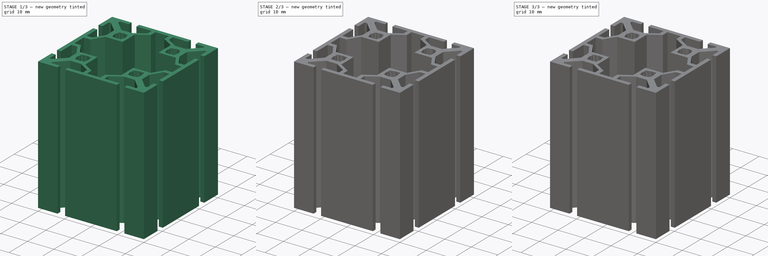
[diagram: build sequence overview — one tinted view per stage of 3, left to right]
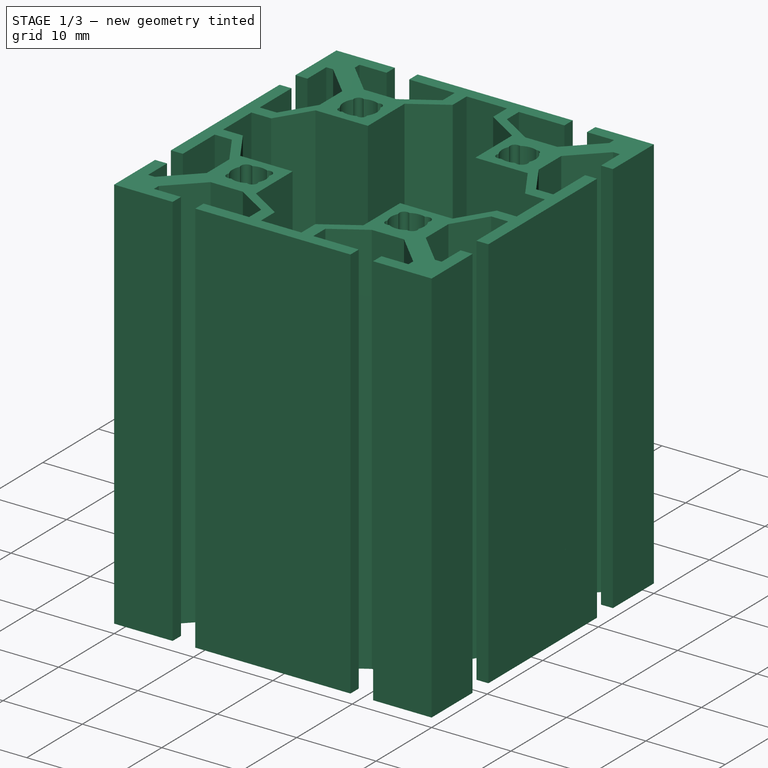
[diagram: stage 1 of 3 — iso view after this stage's code; geometry added in this stage tinted green]
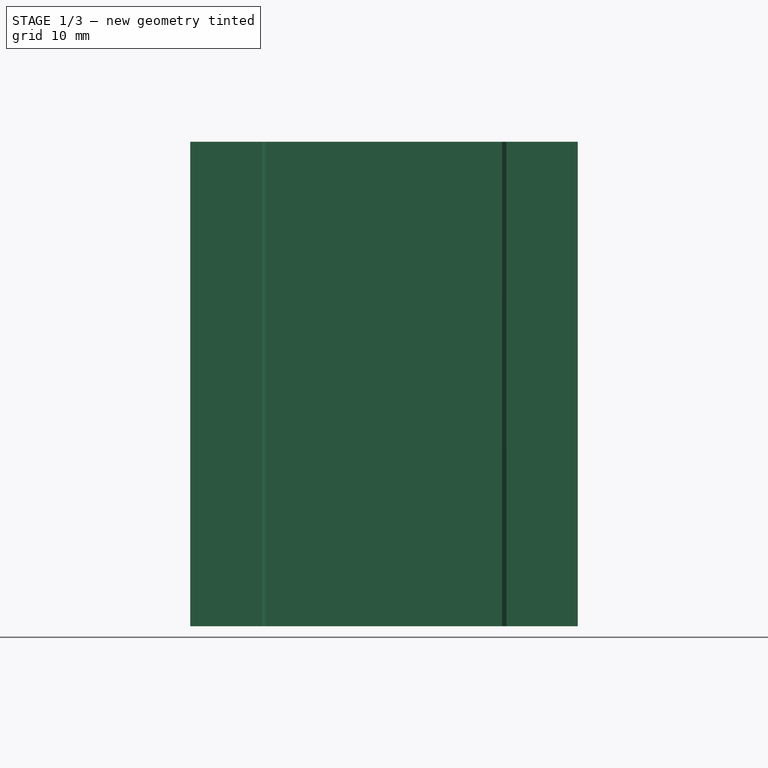
[diagram: stage 1 of 3 — front view after this stage's code; geometry added in this stage tinted green]
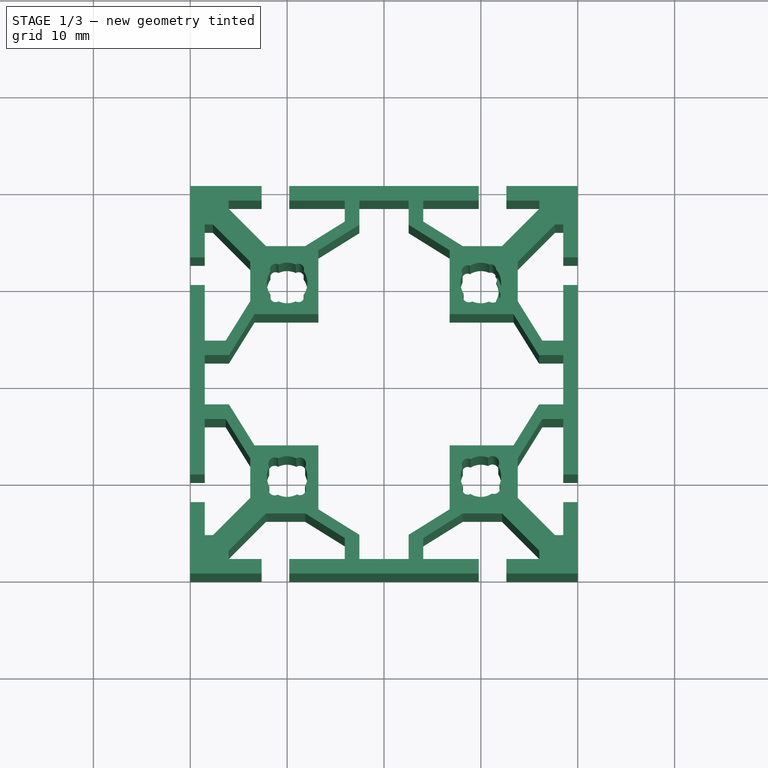
[diagram: stage 1 of 3 — top view after this stage's code; geometry added in this stage tinted green]
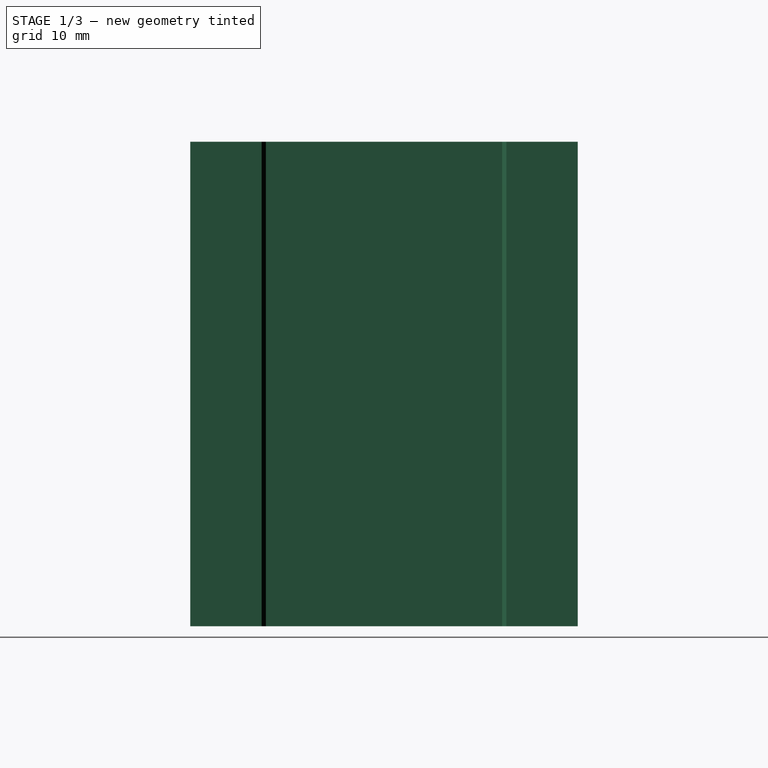
[diagram: stage 1 of 3 — right view after this stage's code; geometry added in this stage tinted green]
FCSTD DOCUMENT  (FreeCAD 0.19R24267 +99 (Git))
Label: Profile 20-4040
License: All rights reserved
LicenseURL: http://en.wikipedia.org/wiki/All_rights_reserved
objects: PartDesign::Body×3, Sketcher::SketchObject×2, PartDesign::Pad×2, PartDesign::Mirrored×2, PartDesign::PolarPattern×1, PartDesign::FeatureBase×1, PartDesign::Boolean×1, App::Part×1
note: 14 computed .brp shape members not serialized (recipe doc carries the construction recipe); baked Part::Feature solids carry a one-line shape summary decoded from their .brp

FEATURE [Sketcher::SketchObject] Sketch
  FullyConstrained = false
  MapMode = 5
  Support = -> [XY_Plane001]
  sketch-geometry (38):
    g0: LineSegment StartX=-22.5 StartY=-22.5 StartZ=0 EndX=22.5 EndY=-22.5 EndZ=0
    g1: LineSegment StartX=22.5 StartY=-22.5 StartZ=0 EndX=22.5 EndY=22.5 EndZ=0
    g2: LineSegment StartX=22.5 StartY=22.5 StartZ=0 EndX=-22.5 EndY=22.5 EndZ=0
    g3: LineSegment StartX=-22.5 StartY=22.5 StartZ=0 EndX=-22.5 EndY=-22.5 EndZ=0
    g4: LineSegment StartX=-22.5 StartY=22.5 StartZ=0 EndX=0 EndY=0 EndZ=0
    g5: LineSegment StartX=0 StartY=0 StartZ=0 EndX=22.5 EndY=-22.5 EndZ=0
    g6: LineSegment StartX=13.369 StartY=6.77383 StartZ=0 EndX=15.9987 EndY=2.5456 EndZ=0
    g7: LineSegment StartX=15.9987 StartY=2.5456 StartZ=0 EndX=18.5 EndY=2.5456 EndZ=0
    g8: LineSegment StartX=18.5 StartY=2.5456 StartZ=0 EndX=18.5 EndY=0 EndZ=0
    g9: LineSegment StartX=18.5 StartY=0 StartZ=0 EndX=20 EndY=0 EndZ=0
    g10: LineSegment StartX=20 StartY=0 StartZ=0 EndX=20 EndY=9.77979 EndZ=0
    g11: LineSegment StartX=20 StartY=9.77979 StartZ=0 EndX=18.5 EndY=9.77979 EndZ=0
    g12: LineSegment StartX=18.5 StartY=9.77979 StartZ=0 EndX=18.5 EndY=4.0456 EndZ=0
    g13: LineSegment StartX=18.5 StartY=4.0456 StartZ=0 EndX=16.3382 EndY=4.0456 EndZ=0
    g14: LineSegment StartX=16.3382 StartY=4.0456 StartZ=0 EndX=13.8 EndY=8.12685 EndZ=0
    g15: LineSegment StartX=13.8 StartY=8.12685 StartZ=0 EndX=13.8 EndY=12.191 EndZ=0
    g16: LineSegment StartX=13.8 StartY=12.191 StartZ=0 EndX=17.6446 EndY=16.0356 EndZ=0
    g17: LineSegment StartX=17.6446 StartY=16.0356 StartZ=0 EndX=18.5 EndY=16.0356 EndZ=0
    g18: LineSegment StartX=18.5 StartY=16.0356 StartZ=0 EndX=18.5 EndY=12.63 EndZ=0
    g19: LineSegment StartX=18.5 StartY=12.63 StartZ=0 EndX=20 EndY=12.63 EndZ=0
    g20: LineSegment StartX=20 StartY=12.63 StartZ=0 EndX=20 EndY=20 EndZ=0
    g21: LineSegment StartX=13.369 StartY=6.77383 StartZ=0 EndX=6.77383 EndY=6.77383 EndZ=0
    g22: LineSegment StartX=6.77383 StartY=6.77383 StartZ=0 EndX=8.14622 EndY=8.14622 EndZ=0
    g23: LineSegment StartX=8.57049 StartY=11.0705 StartZ=0 EndX=11.0705 EndY=11.0705 EndZ=0
    g24: LineSegment StartX=11.0705 StartY=11.0705 StartZ=0 EndX=11.0705 EndY=8.57049 EndZ=0
    g25: LineSegment StartX=11.0705 StartY=8.57049 StartZ=0 EndX=8.57049 EndY=8.57049 EndZ=0
    g26: LineSegment StartX=8.57049 StartY=8.57049 StartZ=0 EndX=8.57049 EndY=11.0705 EndZ=0
    g27: LineSegment StartX=8.57049 StartY=11.0705 StartZ=0 EndX=9.82049 EndY=9.82049 EndZ=0
    g28: LineSegment StartX=9.82049 StartY=9.82049 StartZ=0 EndX=11.0705 EndY=8.57049 EndZ=0
    g29: LineSegment StartX=11.4947 StartY=11.4947 StartZ=0 EndX=20 EndY=20 EndZ=0
    g30: LineSegment StartX=18.5 StartY=4.0456 StartZ=0 EndX=18.5 EndY=2.5456 EndZ=0
    g31: LineSegment StartX=11.4947 StartY=11.4947 StartZ=0 EndX=11.0705 EndY=11.0705 EndZ=0
    g32: LineSegment StartX=8.57049 StartY=8.57049 StartZ=0 EndX=8.14622 EndY=8.14622 EndZ=0
    g33: ArcOfCircle CenterX=11.0705 CenterY=8.57049 CenterZ=0 NormalX=0 NormalY=0 NormalZ=1 AngleXU=0 Radius=0.6 StartAngle=4.17221 EndAngle=6.82336
    g34: ArcOfCircle CenterX=8.57049 CenterY=8.57049 CenterZ=0 NormalX=0 NormalY=0 NormalZ=1 AngleXU=0 Radius=0.6 StartAngle=3.92699 EndAngle=5.25256
    g35: ArcOfCircle CenterX=11.0705 CenterY=11.0705 CenterZ=0 NormalX=0 NormalY=0 NormalZ=1 AngleXU=0 Radius=0.6 StartAngle=5.74301 EndAngle=7.06858
    g36: ArcOfCircle CenterX=9.82049 CenterY=9.82049 CenterZ=0 NormalX=0 NormalY=0 NormalZ=1 AngleXU=0 Radius=2 StartAngle=5.79309 EndAngle=6.77329
    g37: ArcOfCircle CenterX=9.82049 CenterY=9.82049 CenterZ=0 NormalX=0 NormalY=0 NormalZ=1 AngleXU=0 Radius=2 StartAngle=4.22229 EndAngle=5.20249
  constraints (99):
    c: Horizontal(g0)
    c: Coincident(g0,g1)
    c: Vertical(g1)
    c: Coincident(g1,g2)
    c: Horizontal(g2)
    c: Coincident(g2,g3)
    c: Coincident(g3,g0)
    c: Vertical(g3)
    c: Coincident(g2,g4)
    c: Coincident(g4,g-1)
    c: Coincident(g4,g5)
    c: Coincident(g5,g0)
    c: Parallel(g4,g5)
    c: Equal(g1,g2)
    c: DistanceX(g2,g2) = 45
    c: Coincident(g6,g7)
    c: Coincident(g7,g8)
    c: PointOnObject(g8,g-1)
    c: Coincident(g8,g9)
    c: PointOnObject(g9,g-1)
    c: Coincident(g9,g10)
    c: Vertical(g10)
    c: Coincident(g10,g11)
    c: Horizontal(g11)
    c: Coincident(g11,g12)
    c: Vertical(g12)
    c: Coincident(g12,g13)
    c: Coincident(g13,g14)
    c: Coincident(g14,g15)
    c: Vertical(g15)
    c: Coincident(g15,g16)
    c: Coincident(g16,g17)
    c: Coincident(g17,g18)
    c: Coincident(g18,g19)
    c: Horizontal(g19)
    c: Coincident(g19,g20)
    c: Vertical(g20)
    c: Coincident(g6,g21)
    c: Horizontal(g21)
    c: Coincident(g21,g22)
    c: Coincident(g29,g20)
    c: Coincident(g24,g25)
    c: Coincident(g26,g23)
    c: Horizontal(g23)
    c: Horizontal(g25)
    c: Vertical(g24)
    c: Vertical(g26)
    c: Coincident(g23,g27)
    c: Coincident(g27,g28)
    c: Coincident(g28,g24)
    c: Equal(g28,g27)
    c: Vertical(g18)
    c: Vertical(g8)
    c: Horizontal(g13)
    c: Horizontal(g7)
    c: Horizontal(g17)
    c: DistanceX(g-1,g20) = 20
    c: DistanceX(g14,g11) = 4.7
    c: Vertical(g12,g7)
    c: DistanceX(g9,g9) = 1.5
    c: Vertical(g19,g10)
    c: Parallel(g16,g29)
    c: Equal(g19,g9)
    c: DistanceY(g20,g20) = 7.37
    c: DistanceY(g12,g17) = 11.99
    c: Parallel(g14,g6)
    c: Coincident(g30,g12)
    c: Coincident(g30,g7)
    c: Equal(g9,g30)
    c: Coincident(g24,g23)
    c: Coincident(g26,g25)
    c: Parallel(g28,g27)
    c: Parallel(g22,g29)
    c: DistanceY(g-1,g20) = 20
    c: Coincident(g31,g23)
    c: Coincident(g32,g25)
    c: Equal(g31,g32)
    c: Parallel(g32,g22)
    c: Equal(g24,g25)
    c: Coincident(g33,g24)
    c: Coincident(g34,g25)
    c: Coincident(g35,g23)
    c: Coincident(g36,g35)
    c: Coincident(g29,g35)
    c: Coincident(g22,g34)
    c: Coincident(g29,g31)
    c: Coincident(g32,g22)
    c: Coincident(g33,g36)
    c: Equal(g33,g34)
    c: Radius(g35) = 0.6
    c: DistanceX(g25,g25) = 2.5
    c: Parallel(g31,g29)
    c: Coincident(g37,g27)
    c: Coincident(g37,g33)
    c: Coincident(g37,g34)
    c: Equal(g36,g37)
    c: Radius(g36) = 2
    c: Coincident(g37,g36)
    c: Angle(g29,g20) = 0.785398
FEATURE [PartDesign::Pad] Pad
  AllowMultiFace = false
  Direction = (1,1,1)
  Length = 10
  Length2 = 100
  Profile = -> Sketch
  Refine = true
  Type = 0
FEATURE [PartDesign::Body] Body
  Group = -> [Sketch,Pad,Mirrored,PolarPattern,Mirrored001,Boolean]
  Origin = -> Origin001
  Tip = -> Boolean
FEATURE [Sketcher::SketchObject] Sketch001
  FullyConstrained = false
  sketch-geometry (151):
    g0: LineSegment StartX=-12.63 StartY=20 StartZ=0 EndX=-20 EndY=20 EndZ=0
    g1: LineSegment StartX=-12.63 StartY=18.5 StartZ=0 EndX=-12.63 EndY=20 EndZ=0
    g2: LineSegment StartX=-16.0356 StartY=18.5 StartZ=0 EndX=-12.63 EndY=18.5 EndZ=0
    g3: LineSegment StartX=-16.0356 StartY=17.6446 StartZ=0 EndX=-16.0356 EndY=18.5 EndZ=0
    g4: LineSegment StartX=-12.191 StartY=13.8 StartZ=0 EndX=-16.0356 EndY=17.6446 EndZ=0
    g5: LineSegment StartX=-8.12685 StartY=13.8 StartZ=0 EndX=-12.191 EndY=13.8 EndZ=0
    g6: LineSegment StartX=-4.0456 StartY=16.3382 StartZ=0 EndX=-8.12685 EndY=13.8 EndZ=0
    g7: LineSegment StartX=-4.0456 StartY=18.5 StartZ=0 EndX=-4.0456 EndY=16.3382 EndZ=0
    g8: LineSegment StartX=-9.77979 StartY=18.5 StartZ=0 EndX=-4.0456 EndY=18.5 EndZ=0
    g9: LineSegment StartX=-9.77979 StartY=20 StartZ=0 EndX=-9.77979 EndY=18.5 EndZ=0
    g10: LineSegment StartX=-9.77979 StartY=20 StartZ=0 EndX=9.77979 EndY=20 EndZ=0
    g11: LineSegment StartX=9.77979 StartY=20 StartZ=0 EndX=9.77979 EndY=18.5 EndZ=0
    g12: LineSegment StartX=9.77979 StartY=18.5 StartZ=0 EndX=4.0456 EndY=18.5 EndZ=0
    g13: LineSegment StartX=4.0456 StartY=18.5 StartZ=0 EndX=4.0456 EndY=16.3382 EndZ=0
    g14: LineSegment StartX=4.0456 StartY=16.3382 StartZ=0 EndX=8.12685 EndY=13.8 EndZ=0
    g15: LineSegment StartX=8.12685 StartY=13.8 StartZ=0 EndX=12.191 EndY=13.8 EndZ=0
    g16: LineSegment StartX=12.191 StartY=13.8 StartZ=0 EndX=16.0356 EndY=17.6446 EndZ=0
    g17: LineSegment StartX=16.0356 StartY=17.6446 StartZ=0 EndX=16.0356 EndY=18.5 EndZ=0
    g18: LineSegment StartX=16.0356 StartY=18.5 StartZ=0 EndX=12.63 EndY=18.5 EndZ=0
    g19: LineSegment StartX=12.63 StartY=18.5 StartZ=0 EndX=12.63 EndY=20 EndZ=0
    g20: LineSegment StartX=12.63 StartY=20 StartZ=0 EndX=20 EndY=20 EndZ=0
    g21: LineSegment StartX=20 StartY=12.63 StartZ=0 EndX=20 EndY=20 EndZ=0
    g22: LineSegment StartX=18.5 StartY=12.63 StartZ=0 EndX=20 EndY=12.63 EndZ=0
    g23: LineSegment StartX=18.5 StartY=16.0356 StartZ=0 EndX=18.5 EndY=12.63 EndZ=0
    g24: LineSegment StartX=17.6446 StartY=16.0356 StartZ=0 EndX=18.5 EndY=16.0356 EndZ=0
    g25: LineSegment StartX=13.8 StartY=12.191 StartZ=0 EndX=17.6446 EndY=16.0356 EndZ=0
    g26: LineSegment StartX=13.8 StartY=8.12685 StartZ=0 EndX=13.8 EndY=12.191 EndZ=0
    g27: LineSegment StartX=16.3382 StartY=4.0456 StartZ=0 EndX=13.8 EndY=8.12685 EndZ=0
    g28: LineSegment StartX=18.5 StartY=4.0456 StartZ=0 EndX=16.3382 EndY=4.0456 EndZ=0
    g29: LineSegment StartX=18.5 StartY=9.77979 StartZ=0 EndX=18.5 EndY=4.0456 EndZ=0
    g30: LineSegment StartX=20 StartY=9.77979 StartZ=0 EndX=18.5 EndY=9.77979 EndZ=0
    g31: LineSegment StartX=20 StartY=9.77979 StartZ=0 EndX=20 EndY=-9.77979 EndZ=0
    g32: LineSegment StartX=20 StartY=-9.77979 StartZ=0 EndX=18.5 EndY=-9.77979 EndZ=0
    g33: LineSegment StartX=18.5 StartY=-9.77979 StartZ=0 EndX=18.5 EndY=-4.0456 EndZ=0
    g34: LineSegment StartX=18.5 StartY=-4.0456 StartZ=0 EndX=16.3382 EndY=-4.0456 EndZ=0
    g35: LineSegment StartX=16.3382 StartY=-4.0456 StartZ=0 EndX=13.8 EndY=-8.12685 EndZ=0
    g36: LineSegment StartX=13.8 StartY=-8.12685 StartZ=0 EndX=13.8 EndY=-12.191 EndZ=0
    g37: LineSegment StartX=13.8 StartY=-12.191 StartZ=0 EndX=17.6446 EndY=-16.0356 EndZ=0
    g38: LineSegment StartX=17.6446 StartY=-16.0356 StartZ=0 EndX=18.5 EndY=-16.0356 EndZ=0
    g39: LineSegment StartX=18.5 StartY=-16.0356 StartZ=0 EndX=18.5 EndY=-12.63 EndZ=0
    g40: LineSegment StartX=18.5 StartY=-12.63 StartZ=0 EndX=20 EndY=-12.63 EndZ=0
    g41: LineSegment StartX=20 StartY=-12.63 StartZ=0 EndX=20 EndY=-20 EndZ=0
    g42: LineSegment StartX=12.63 StartY=-20 StartZ=0 EndX=20 EndY=-20 EndZ=0
    g43: LineSegment StartX=12.63 StartY=-18.5 StartZ=0 EndX=12.63 EndY=-20 EndZ=0
    g44: LineSegment StartX=16.0356 StartY=-18.5 StartZ=0 EndX=12.63 EndY=-18.5 EndZ=0
    g45: LineSegment StartX=16.0356 StartY=-17.6446 StartZ=0 EndX=16.0356 EndY=-18.5 EndZ=0
    g46: LineSegment StartX=12.191 StartY=-13.8 StartZ=0 EndX=16.0356 EndY=-17.6446 EndZ=0
    g47: LineSegment StartX=8.12685 StartY=-13.8 StartZ=0 EndX=12.191 EndY=-13.8 EndZ=0
    g48: LineSegment StartX=4.0456 StartY=-16.3382 StartZ=0 EndX=8.12685 EndY=-13.8 EndZ=0
    g49: LineSegment StartX=4.0456 StartY=-18.5 StartZ=0 EndX=4.0456 EndY=-16.3382 EndZ=0
    g50: LineSegment StartX=9.77979 StartY=-18.5 StartZ=0 EndX=4.0456 EndY=-18.5 EndZ=0
    g51: LineSegment StartX=9.77979 StartY=-20 StartZ=0 EndX=9.77979 EndY=-18.5 EndZ=0
    g52: LineSegment StartX=9.77979 StartY=-20 StartZ=0 EndX=-9.77979 EndY=-20 EndZ=0
    g53: LineSegment StartX=-9.77979 StartY=-20 StartZ=0 EndX=-9.77979 EndY=-18.5 EndZ=0
    g54: LineSegment StartX=-9.77979 StartY=-18.5 StartZ=0 EndX=-4.0456 EndY=-18.5 EndZ=0
    g55: LineSegment StartX=-4.0456 StartY=-18.5 StartZ=0 EndX=-4.0456 EndY=-16.3382 EndZ=0
    g56: LineSegment StartX=-4.0456 StartY=-16.3382 StartZ=0 EndX=-8.12685 EndY=-13.8 EndZ=0
    g57: LineSegment StartX=-8.12685 StartY=-13.8 StartZ=0 EndX=-12.191 EndY=-13.8 EndZ=0
    g58: LineSegment StartX=-12.191 StartY=-13.8 StartZ=0 EndX=-16.0356 EndY=-17.6446 EndZ=0
    g59: LineSegment StartX=-16.0356 StartY=-17.6446 StartZ=0 EndX=-16.0356 EndY=-18.5 EndZ=0
    g60: LineSegment StartX=-16.0356 StartY=-18.5 StartZ=0 EndX=-12.63 EndY=-18.5 EndZ=0
    g61: LineSegment StartX=-12.63 StartY=-18.5 StartZ=0 EndX=-12.63 EndY=-20 EndZ=0
    g62: LineSegment StartX=-12.63 StartY=-20 StartZ=0 EndX=-20 EndY=-20 EndZ=0
    g63: LineSegment StartX=-20 StartY=-12.63 StartZ=0 EndX=-20 EndY=-20 EndZ=0
    g64: LineSegment StartX=-18.5 StartY=-12.63 StartZ=0 EndX=-20 EndY=-12.63 EndZ=0
    g65: LineSegment StartX=-18.5 StartY=-16.0356 StartZ=0 EndX=-18.5 EndY=-12.63 EndZ=0
    g66: LineSegment StartX=-17.6446 StartY=-16.0356 StartZ=0 EndX=-18.5 EndY=-16.0356 EndZ=0
    g67: LineSegment StartX=-13.8 StartY=-12.191 StartZ=0 EndX=-17.6446 EndY=-16.0356 EndZ=0
    g68: LineSegment StartX=-13.8 StartY=-8.12685 StartZ=0 EndX=-13.8 EndY=-12.191 EndZ=0
    g69: LineSegment StartX=-16.3382 StartY=-4.0456 StartZ=0 EndX=-13.8 EndY=-8.12685 EndZ=0
    g70: LineSegment StartX=-18.5 StartY=-4.0456 StartZ=0 EndX=-16.3382 EndY=-4.0456 EndZ=0
    g71: LineSegment StartX=-18.5 StartY=-9.77979 StartZ=0 EndX=-18.5 EndY=-4.0456 EndZ=0
    g72: LineSegment StartX=-20 StartY=-9.77979 StartZ=0 EndX=-18.5 EndY=-9.77979 EndZ=0
    g73: LineSegment StartX=-20 StartY=-9.77979 StartZ=0 EndX=-20 EndY=9.77979 EndZ=0
    g74: LineSegment StartX=-20 StartY=9.77979 StartZ=0 EndX=-18.5 EndY=9.77979 EndZ=0
    g75: LineSegment StartX=-18.5 StartY=9.77979 StartZ=0 EndX=-18.5 EndY=4.0456 EndZ=0
    g76: LineSegment StartX=-18.5 StartY=4.0456 StartZ=0 EndX=-16.3382 EndY=4.0456 EndZ=0
    g77: LineSegment StartX=-16.3382 StartY=4.0456 StartZ=0 EndX=-13.8 EndY=8.12685 EndZ=0
    g78: LineSegment StartX=-13.8 StartY=8.12685 StartZ=0 EndX=-13.8 EndY=12.191 EndZ=0
    g79: LineSegment StartX=-13.8 StartY=12.191 StartZ=0 EndX=-17.6446 EndY=16.0356 EndZ=0
    g80: LineSegment StartX=-17.6446 StartY=16.0356 StartZ=0 EndX=-18.5 EndY=16.0356 EndZ=0
    g81: LineSegment StartX=-18.5 StartY=16.0356 StartZ=0 EndX=-18.5 EndY=12.63 EndZ=0
    g82: LineSegment StartX=-18.5 StartY=12.63 StartZ=0 EndX=-20 EndY=12.63 EndZ=0
    g83: LineSegment StartX=-20 StartY=12.63 StartZ=0 EndX=-20 EndY=20 EndZ=0
    g84: LineSegment StartX=-13.369 StartY=-6.77383 StartZ=0 EndX=-6.77383 EndY=-6.77383 EndZ=0
    g85: LineSegment StartX=-6.77383 StartY=-13.369 StartZ=0 EndX=-6.77383 EndY=-6.77383 EndZ=0
    g86: LineSegment StartX=-6.77383 StartY=-13.369 StartZ=0 EndX=-2.5456 EndY=-15.9987 EndZ=0
    g87: LineSegment StartX=-2.5456 StartY=-15.9987 StartZ=0 EndX=-2.5456 EndY=-18.5 EndZ=0
    g88: LineSegment StartX=2.5456 StartY=-18.5 StartZ=0 EndX=-2.5456 EndY=-18.5 EndZ=0
    g89: LineSegment StartX=2.5456 StartY=-15.9987 StartZ=0 EndX=2.5456 EndY=-18.5 EndZ=0
    g90: LineSegment StartX=6.77383 StartY=-13.369 StartZ=0 EndX=2.5456 EndY=-15.9987 EndZ=0
    g91: LineSegment StartX=6.77383 StartY=-13.369 StartZ=0 EndX=6.77383 EndY=-6.77383 EndZ=0
    g92: LineSegment StartX=13.369 StartY=6.77383 StartZ=0 EndX=6.77383 EndY=6.77383 EndZ=0
    g93: LineSegment StartX=13.369 StartY=6.77383 StartZ=0 EndX=15.9987 EndY=2.5456 EndZ=0
    g94: LineSegment StartX=6.77383 StartY=13.369 StartZ=0 EndX=6.77383 EndY=6.77383 EndZ=0
    g95: LineSegment StartX=15.9987 StartY=2.5456 StartZ=0 EndX=18.5 EndY=2.5456 EndZ=0
    g96: LineSegment StartX=6.77383 StartY=13.369 StartZ=0 EndX=2.5456 EndY=15.9987 EndZ=0
    g97: LineSegment StartX=2.5456 StartY=15.9987 StartZ=0 EndX=2.5456 EndY=18.5 EndZ=0
    g98: LineSegment StartX=-2.5456 StartY=18.5 StartZ=0 EndX=2.5456 EndY=18.5 EndZ=0
    g99: LineSegment StartX=-2.5456 StartY=15.9987 StartZ=0 EndX=-2.5456 EndY=18.5 EndZ=0
    g100: LineSegment StartX=-6.77383 StartY=13.369 StartZ=0 EndX=-2.5456 EndY=15.9987 EndZ=0
    g101: LineSegment StartX=-6.77383 StartY=13.369 StartZ=0 EndX=-6.77383 EndY=6.77383 EndZ=0
    g102: LineSegment StartX=18.5 StartY=2.5456 StartZ=0 EndX=18.5 EndY=-2.5456 EndZ=0
    g103: LineSegment StartX=13.369 StartY=-6.77383 StartZ=0 EndX=6.77383 EndY=-6.77383 EndZ=0
    g104: LineSegment StartX=13.369 StartY=-6.77383 StartZ=0 EndX=15.9987 EndY=-2.5456 EndZ=0
    g105: LineSegment StartX=15.9987 StartY=-2.5456 StartZ=0 EndX=18.5 EndY=-2.5456 EndZ=0
    g106: LineSegment StartX=-13.369 StartY=6.77383 StartZ=0 EndX=-6.77383 EndY=6.77383 EndZ=0
    g107: LineSegment StartX=-13.369 StartY=6.77383 StartZ=0 EndX=-15.9987 EndY=2.5456 EndZ=0
    g108: LineSegment StartX=-15.9987 StartY=2.5456 StartZ=0 EndX=-18.5 EndY=2.5456 EndZ=0
    g109: LineSegment StartX=-18.5 StartY=-2.5456 StartZ=0 EndX=-18.5 EndY=2.5456 EndZ=0
    g110: LineSegment StartX=-15.9987 StartY=-2.5456 StartZ=0 EndX=-18.5 EndY=-2.5456 EndZ=0
    g111: LineSegment StartX=-13.369 StartY=-6.77383 StartZ=0 EndX=-15.9987 EndY=-2.5456 EndZ=0
    g112: ArcOfCircle CenterX=-8.69794 CenterY=-8.67761 CenterZ=0 NormalX=0 NormalY=0 NormalZ=1 AngleXU=-1.5708 Radius=0.658767 StartAngle=1.0087 EndAngle=2.36916
    g113: ArcOfCircle CenterX=-8.69794 CenterY=-8.67761 CenterZ=0 NormalX=0 NormalY=0 NormalZ=1 AngleXU=3.14159 Radius=0.658767 StartAngle=3.93995 EndAngle=5.28528
    g114: ArcOfCircle CenterX=-10 CenterY=-9.9938 CenterZ=0 NormalX=0 NormalY=0 NormalZ=1 AngleXU=3.14159 Radius=2.095 StartAngle=4.24444 EndAngle=5.17031
    g115: ArcOfCircle CenterX=-11.2787 CenterY=-8.66862 CenterZ=0 NormalX=0 NormalY=0 NormalZ=1 AngleXU=3.14159 Radius=0.656624 StartAngle=4.14569 EndAngle=6.81416
    g116: ArcOfCircle CenterX=-10 CenterY=-9.9938 CenterZ=0 NormalX=0 NormalY=0 NormalZ=1 AngleXU=3.14159 Radius=2.095 StartAngle=5.78954 EndAngle=6.77515
    g117: ArcOfCircle CenterX=-11.2945 CenterY=-11.3006 CenterZ=0 NormalX=0 NormalY=0 NormalZ=1 AngleXU=-1.5708 Radius=0.636713 StartAngle=5.49793 EndAngle=6.81416
    g118: ArcOfCircle CenterX=-11.2945 CenterY=-11.3006 CenterZ=0 NormalX=0 NormalY=0 NormalZ=1 AngleXU=3.14159 Radius=0.636713 StartAngle=5.76169 EndAngle=7.06873
    g119: ArcOfCircle CenterX=-10 CenterY=-9.9938 CenterZ=0 NormalX=0 NormalY=0 NormalZ=1 AngleXU=-1.5708 Radius=2.095 StartAngle=5.80069 EndAngle=6.78865
    g120: ArcOfCircle CenterX=-8.67173 CenterY=-11.3013 CenterZ=0 NormalX=0 NormalY=0 NormalZ=1 AngleXU=-1.5708 Radius=0.612138 StartAngle=5.74485 EndAngle=8.4081
    g121: ArcOfCircle CenterX=-10 CenterY=-9.9938 CenterZ=0 NormalX=0 NormalY=0 NormalZ=1 AngleXU=-1.5708 Radius=2.095 StartAngle=1.08112 EndAngle=2.04954
    g122: ArcOfCircle CenterX=10 CenterY=-9.9938 CenterZ=0 NormalX=0 NormalY=0 NormalZ=1 AngleXU=0 Radius=2.095 StartAngle=5.88972 EndAngle=6.8291
    g123: ArcOfCircle CenterX=11.1959 CenterY=-8.56387 CenterZ=0 NormalX=0 NormalY=0 NormalZ=1 AngleXU=0 Radius=0.686034 StartAngle=5.76096 EndAngle=8.55399
    g124: ArcOfCircle CenterX=10 CenterY=-9.9938 CenterZ=0 NormalX=0 NormalY=0 NormalZ=1 AngleXU=0 Radius=2.095 StartAngle=1.20266 EndAngle=2.10892
    g125: ArcOfCircle CenterX=10 CenterY=-9.9938 CenterZ=0 NormalX=0 NormalY=0 NormalZ=1 AngleXU=-1.5708 Radius=2.095 StartAngle=4.2385 EndAngle=5.2016
    g126: ArcOfCircle CenterX=8.64913 CenterY=-11.2773 CenterZ=0 NormalX=0 NormalY=0 NormalZ=1 AngleXU=-1.5708 Radius=0.581194 StartAngle=4.17205 EndAngle=6.77238
    g127: ArcOfCircle CenterX=10 CenterY=-9.9938 CenterZ=0 NormalX=0 NormalY=0 NormalZ=1 AngleXU=-1.5708 Radius=2.095 StartAngle=5.74283 EndAngle=6.86195
    g128: ArcOfCircle CenterX=-10 CenterY=9.9938 CenterZ=0 NormalX=0 NormalY=0 NormalZ=1 AngleXU=1.5708 Radius=2.095 StartAngle=4.09627 EndAngle=5.32851
    g129: ArcOfCircle CenterX=-8.80869 CenterY=11.414 CenterZ=0 NormalX=0 NormalY=0 NormalZ=1 AngleXU=1.5708 Radius=0.55924 StartAngle=4.32824 EndAngle=6.8422
    g130: ArcOfCircle CenterX=-10 CenterY=9.9938 CenterZ=0 NormalX=0 NormalY=0 NormalZ=1 AngleXU=1.5708 Radius=2.095 StartAngle=5.84193 EndAngle=6.72444
    g131: ArcOfCircle CenterX=-10 CenterY=9.9938 CenterZ=0 NormalX=0 NormalY=0 NormalZ=1 AngleXU=3.14159 Radius=2.095 StartAngle=5.66707 EndAngle=6.8993
    g132: ArcOfCircle CenterX=-11.1913 CenterY=8.57357 CenterZ=0 NormalX=0 NormalY=0 NormalZ=1 AngleXU=3.14159 Radius=0.55924 StartAngle=5.89904 EndAngle=8.413
    g133: ArcOfCircle CenterX=-10 CenterY=9.9938 CenterZ=0 NormalX=0 NormalY=0 NormalZ=1 AngleXU=3.14159 Radius=2.095 StartAngle=1.12955 EndAngle=2.01205
    g134: ArcOfCircle CenterX=8.70701 CenterY=8.58474 CenterZ=0 NormalX=0 NormalY=0 NormalZ=1 AngleXU=1.5708 Radius=0.569441 StartAngle=1.01652 EndAngle=2.34444
    g135: ArcOfCircle CenterX=8.76393 CenterY=8.65939 CenterZ=0 NormalX=0 NormalY=0 NormalZ=1 AngleXU=0 Radius=0.662463 StartAngle=3.93581 EndAngle=5.26653
    g136: ArcOfCircle CenterX=10 CenterY=9.9938 CenterZ=0 NormalX=0 NormalY=0 NormalZ=1 AngleXU=0 Radius=2.095 StartAngle=4.27496 EndAngle=5.12785
    g137: ArcOfCircle CenterX=11.247 CenterY=8.74477 CenterZ=0 NormalX=0 NormalY=0 NormalZ=1 AngleXU=0 Radius=0.779105 StartAngle=4.17116 EndAngle=6.82276
    g138: ArcOfCircle CenterX=10 CenterY=9.9938 CenterZ=0 NormalX=0 NormalY=0 NormalZ=1 AngleXU=0 Radius=2.095 StartAngle=5.86607 EndAngle=7.00748
    g139: ArcOfCircle CenterX=11.0337 CenterY=11.3891 CenterZ=0 NormalX=0 NormalY=0 NormalZ=1 AngleXU=1.5708 Radius=0.53543 StartAngle=4.69913 EndAngle=6.59198
    g140: ArcOfCircle CenterX=10 CenterY=9.9938 CenterZ=0 NormalX=0 NormalY=0 NormalZ=1 AngleXU=1.5708 Radius=2.095 StartAngle=5.85443 EndAngle=6.8461
    g141: ArcOfCircle CenterX=8.626 CenterY=11.2313 CenterZ=0 NormalX=0 NormalY=0 NormalZ=1 AngleXU=1.5708 Radius=0.592422 StartAngle=5.83636 EndAngle=8.40527
    g142: ArcOfCircle CenterX=10 CenterY=9.9938 CenterZ=0 NormalX=0 NormalY=0 NormalZ=1 AngleXU=1.5708 Radius=2.095 StartAngle=1.11233 EndAngle=2.12883
    g143: ArcOfCircle CenterX=8.64882 CenterY=-8.72674 CenterZ=0 NormalX=0 NormalY=0 NormalZ=1 AngleXU=0 Radius=0.599877 StartAngle=1.08999 EndAngle=2.3481
    g144: ArcOfCircle CenterX=11.3566 CenterY=-11.1197 CenterZ=0 NormalX=0 NormalY=0 NormalZ=1 AngleXU=0 Radius=0.662275 StartAngle=5.50102 EndAngle=6.79217
    g145: ArcOfCircle CenterX=11.3566 CenterY=-11.1197 CenterZ=0 NormalX=0 NormalY=0 NormalZ=1 AngleXU=-1.5708 Radius=0.662275 StartAngle=5.9595 EndAngle=7.07182
    g146: ArcOfCircle CenterX=8.64882 CenterY=-8.72674 CenterZ=0 NormalX=0 NormalY=0 NormalZ=1 AngleXU=-1.5708 Radius=0.599877 StartAngle=3.9189 EndAngle=5.25743
    g147: ArcOfCircle CenterX=-8.80869 CenterY=8.57357 CenterZ=0 NormalX=0 NormalY=0 NormalZ=1 AngleXU=1.5708 Radius=0.55924 StartAngle=2.58258 EndAngle=5.09654
    g148: ArcOfCircle CenterX=-11.1913 CenterY=11.414 CenterZ=0 NormalX=0 NormalY=0 NormalZ=1 AngleXU=3.14159 Radius=0.55924 StartAngle=4.15337 EndAngle=6.66733
    g149: LineSegment StartX=-11.1913 StartY=11.414 StartZ=0 EndX=-10 EndY=9.9938 EndZ=0
    g150: LineSegment StartX=-8.80869 StartY=8.57357 StartZ=0 EndX=-10 EndY=9.9938 EndZ=0
  constraints (101):
    c: Symmetric(g98,g97,g-2)
    c: Vertical(g99)
    c: Vertical(g97)
    c: Symmetric(g0,g20,g-2)
    c: Symmetric(g0,g62,g-1)
    c: Symmetric(g20,g41,g-1)
    c: DistanceX(g0,g20) = 40
    c: Equal(g20,g21)
    c: Equal(g21,g41)
    c: Equal(g41,g42)
    c: Equal(g42,g62)
    c: Equal(g62,g63)
    c: Equal(g63,g83)
    c: Equal(g83,g0)
    c: DistanceX(g20,g20) = 7.37
    c: DistanceX(g128,g136) = 20
    c: Coincident(g130,g128)
    c: Coincident(g136,g138)
    c: Radius(g128) = 2.095
    c: Equal(g130,g128)
    c: Equal(g128,g133)
    c: Equal(g133,g131)
    c: Equal(g131,g140)
    c: Equal(g140,g138)
    c: Equal(g138,g136)
    c: Equal(g136,g142)
    c: Equal(g142,g124)
    c: Equal(g124,g122)
    c: Equal(g122,g127)
    c: Equal(g127,g125)
    c: Equal(g125,g121)
    c: Equal(g121,g119)
    c: Equal(g119,g116)
    c: Equal(g116,g114)
    c: Coincident(g130,g148)
    c: Coincident(g128,g133)
    c: Coincident(g128,g131)
    c: Symmetric(g128,g136,g-2)
    c: Coincident(g142,g136)
    c: Coincident(g142,g140)
    c: Coincident(g114,g116)
    c: Coincident(g114,g121)
    c: Coincident(g114,g119)
    c: Coincident(g122,g127)
    c: Coincident(g122,g125)
    c: Coincident(g122,g124)
    c: Symmetric(g122,g136,g-1)
    c: Symmetric(g114,g128,g-1)
    c: Coincident(g148,g131)
    c: Coincident(g130,g129)
    c: Coincident(g129,g128)
    c: Coincident(g147,g128)
    c: Coincident(g147,g133)
    c: Coincident(g132,g133)
    c: Coincident(g131,g132)
    c: Equal(g147,g129)
    c: Equal(g129,g148)
    c: Equal(g148,g132)
    c: Horizontal(g147,g132)
    c: Horizontal(g148,g129)
    c: Equal(g150,g149)
    c: Coincident(g149,g148)
    c: Coincident(g149,g150)
    c: Coincident(g128,g149)
    c: Coincident(g150,g147)
    c: Parallel(g150,g149)
    c: Vertical(g129,g147)
    c: Vertical(g148,g132)
    c: Coincident(g140,g141)
    c: Coincident(g139,g140)
    c: Coincident(g138,g139)
    c: Coincident(g142,g141)
    c: Coincident(g134,g142)
    c: Coincident(g137,g138)
    c: Coincident(g137,g136)
    c: Coincident(g136,g135)
    c: Coincident(g134,g135)
    c: Coincident(g143,g124)
    c: Coincident(g146,g143)
    c: Coincident(g146,g125)
    c: Coincident(g124,g123)
    c: Coincident(g123,g122)
    c: Coincident(g144,g122)
    c: Coincident(g145,g144)
    c: Coincident(g145,g127)
    c: Coincident(g127,g126)
    c: Coincident(g144,g145)
    c: Coincident(g143,g146)
    c: Coincident(g118,g116)
    c: Coincident(g118,g117)
    c: Coincident(g117,g118)
    c: Coincident(g117,g119)
    c: Coincident(g120,g119)
    c: Coincident(g120,g121)
    c: Coincident(g112,g121)
    c: Coincident(g113,g112)
    c: Coincident(g112,g113)
    c: Coincident(g113,g114)
    c: Coincident(g114,g115)
    c: Coincident(g115,g116)
    c: Coincident(g125,g126)
FEATURE [PartDesign::Pad] Pad001
  AllowMultiFace = false
  Direction = (1,1,1)
  Length = 50
  Length2 = 100
  Profile = -> Sketch001
  Refine = true
  Type = 0
FEATURE [PartDesign::Body] Body002
  Group = -> [Sketch001,Pad001]
  Origin = -> Origin003
  Tip = -> Pad001
FEATURE [App::Part] Part
  Group = -> [Body,Body002]
  Origin = -> Origin
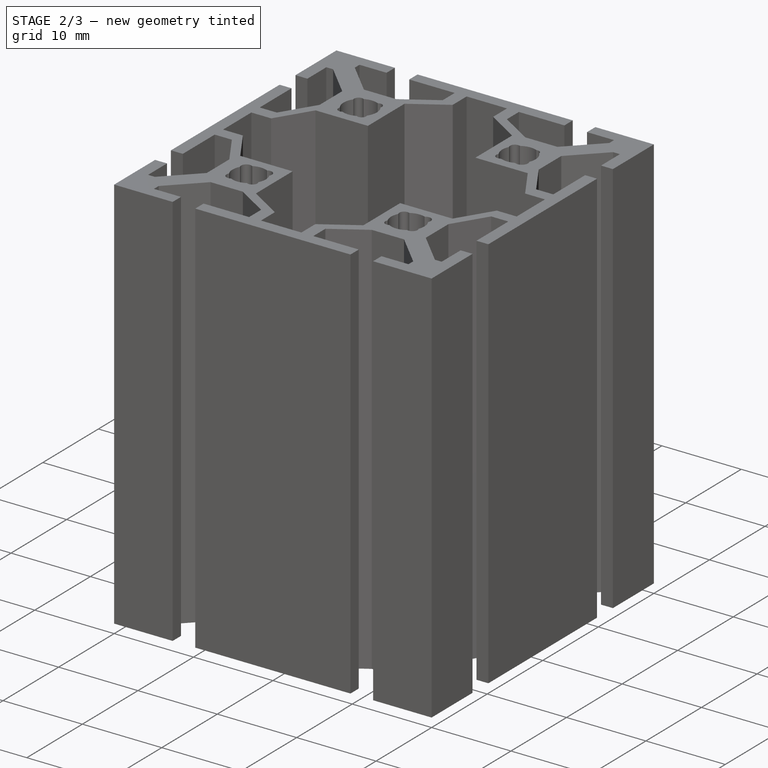
[diagram: stage 2 of 3 — iso view after this stage's code; geometry added in this stage tinted green]
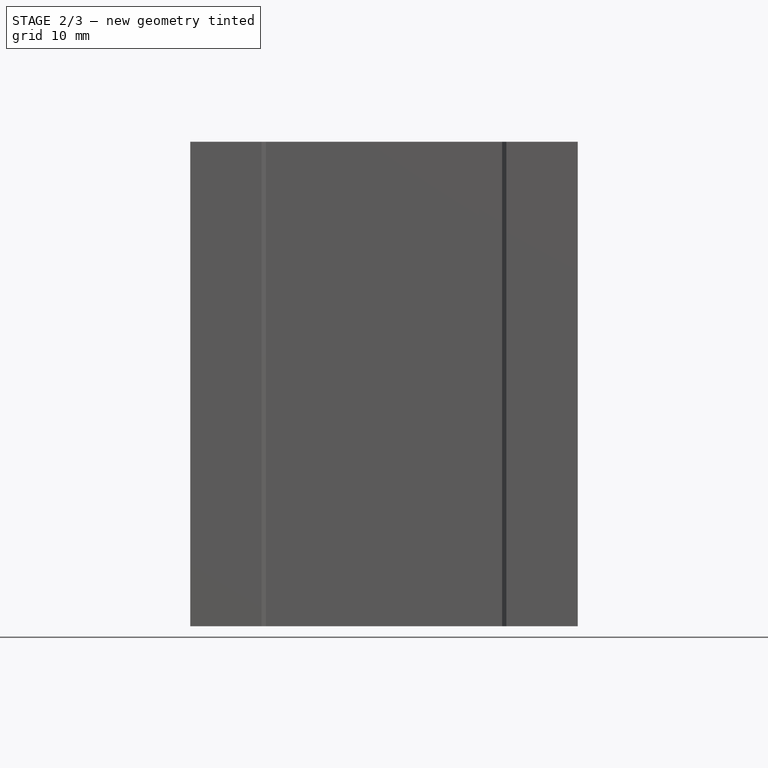
[diagram: stage 2 of 3 — front view after this stage's code; geometry added in this stage tinted green]
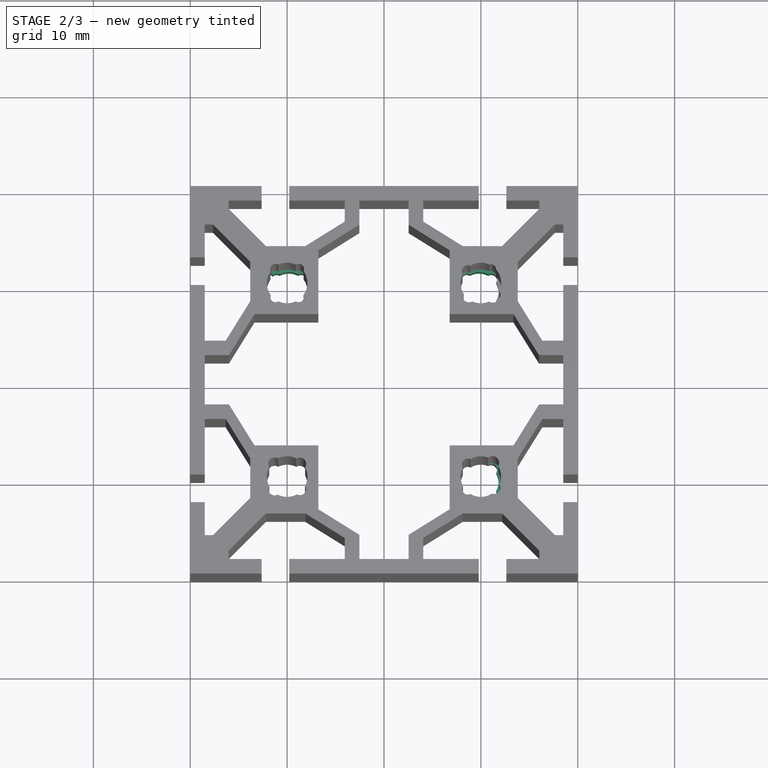
[diagram: stage 2 of 3 — top view after this stage's code; geometry added in this stage tinted green]
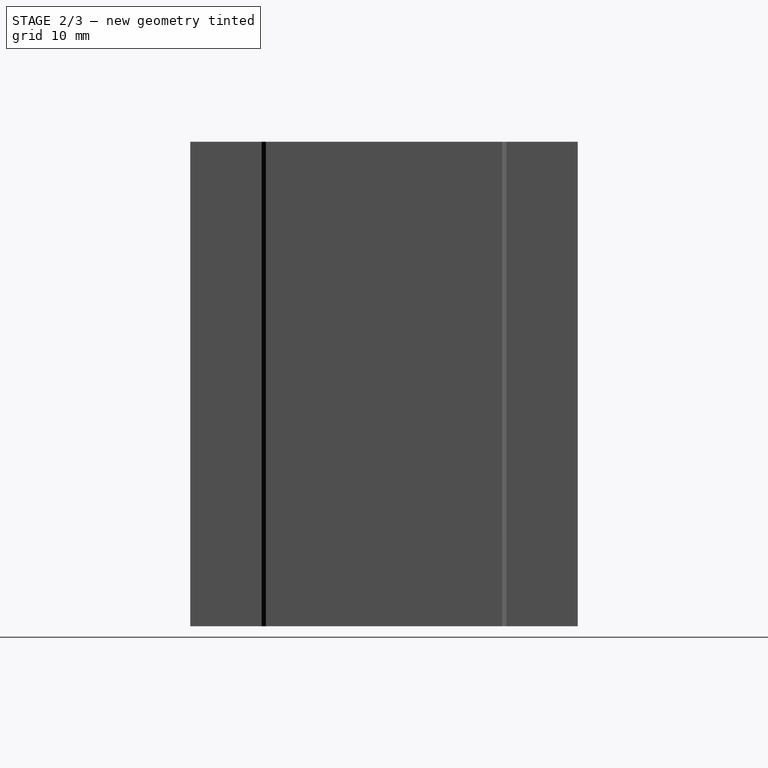
[diagram: stage 2 of 3 — right view after this stage's code; geometry added in this stage tinted green]
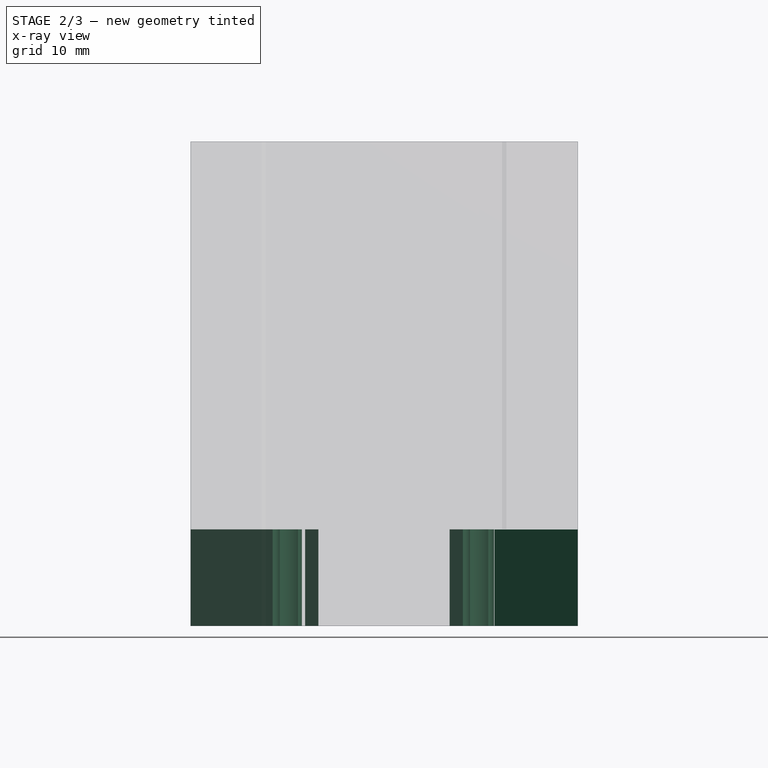
[diagram: stage 2 of 3 — x-ray composite at the front view; earlier geometry ghosted, this stage's added geometry solid]
FEATURE [PartDesign::Mirrored] Mirrored
  BaseFeature = -> Pad
  MirrorPlane = -> Pad [Face19]
  Originals = -> [Pad]
  Refine = true
FEATURE [PartDesign::PolarPattern] PolarPattern
  Angle = 90
  Axis = -> Sketch [N_Axis]
  BaseFeature = -> Mirrored
  Occurrences = 2
  Originals = -> [Pad]
  Refine = true
FEATURE [PartDesign::Mirrored] Mirrored001
  BaseFeature = -> PolarPattern
  MirrorPlane = -> XZ_Plane001
  Originals = -> [Pad]
  Refine = true
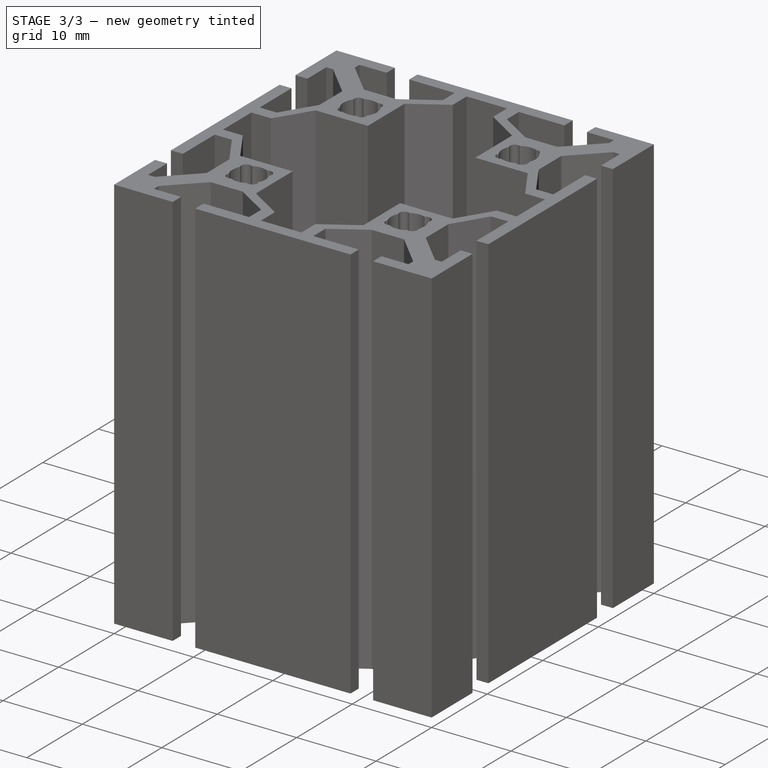
[diagram: stage 3 of 3 — iso view after this stage's code; geometry added in this stage tinted green]
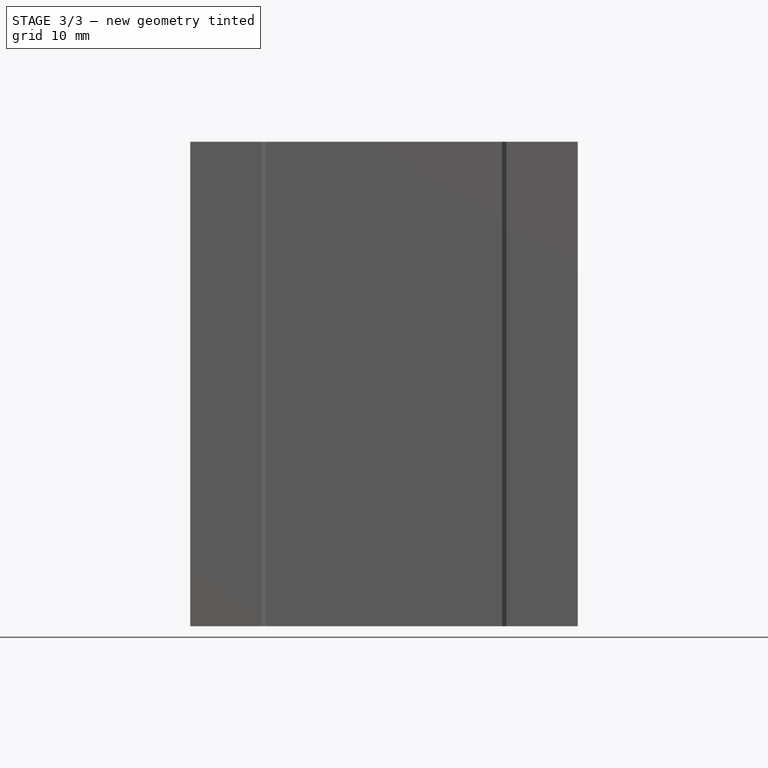
[diagram: stage 3 of 3 — front view after this stage's code; geometry added in this stage tinted green]
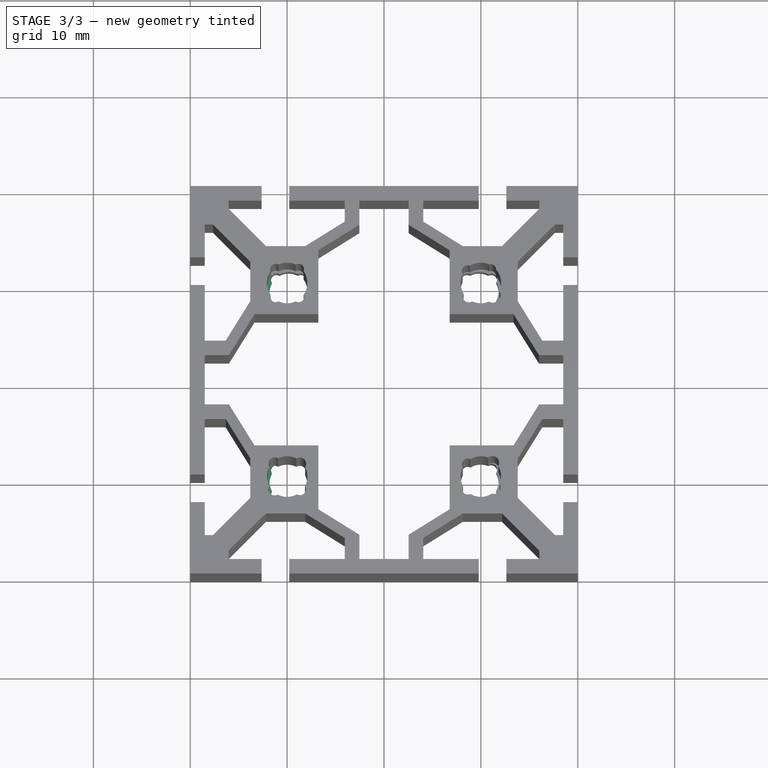
[diagram: stage 3 of 3 — top view after this stage's code; geometry added in this stage tinted green]
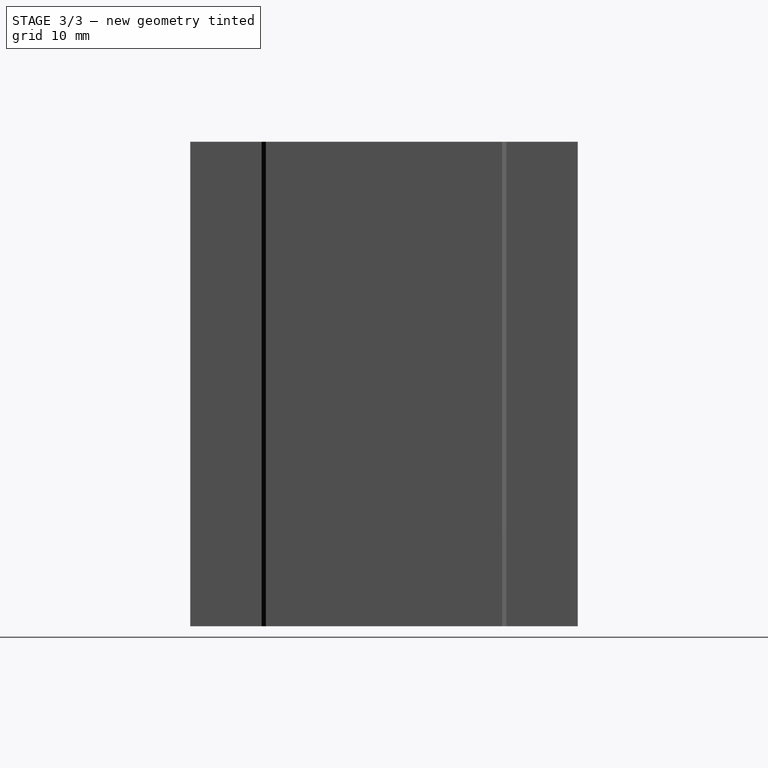
[diagram: stage 3 of 3 — right view after this stage's code; geometry added in this stage tinted green]
FEATURE [PartDesign::FeatureBase] Clone
  BaseFeature = -> Mirrored001
  Placement = pos=(0,0,0) rot=(0,0,1;3.14159rad)
FEATURE [PartDesign::Body] Body001
  BaseFeature = -> Mirrored001
  Group = -> [Clone]
  Origin = -> Origin002
  Tip = -> Clone
FEATURE [PartDesign::Boolean] Boolean
  BaseFeature = -> Mirrored001
  Group = -> [Body001]
  Refine = true
  Type = 0
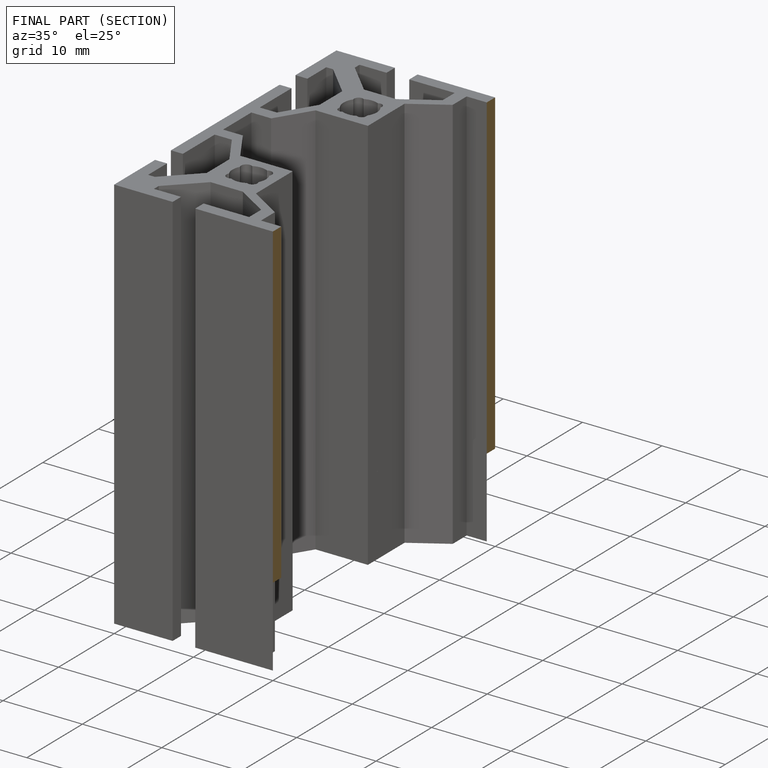
[diagram: finished part — half-section view (interior)]
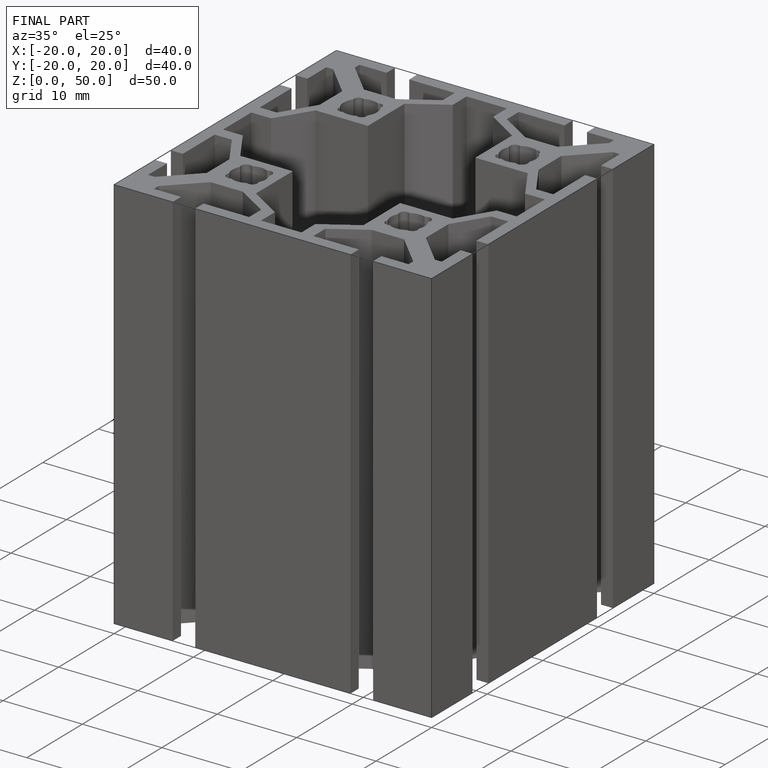
[diagram: finished part — iso view with bounding-box wireframe]
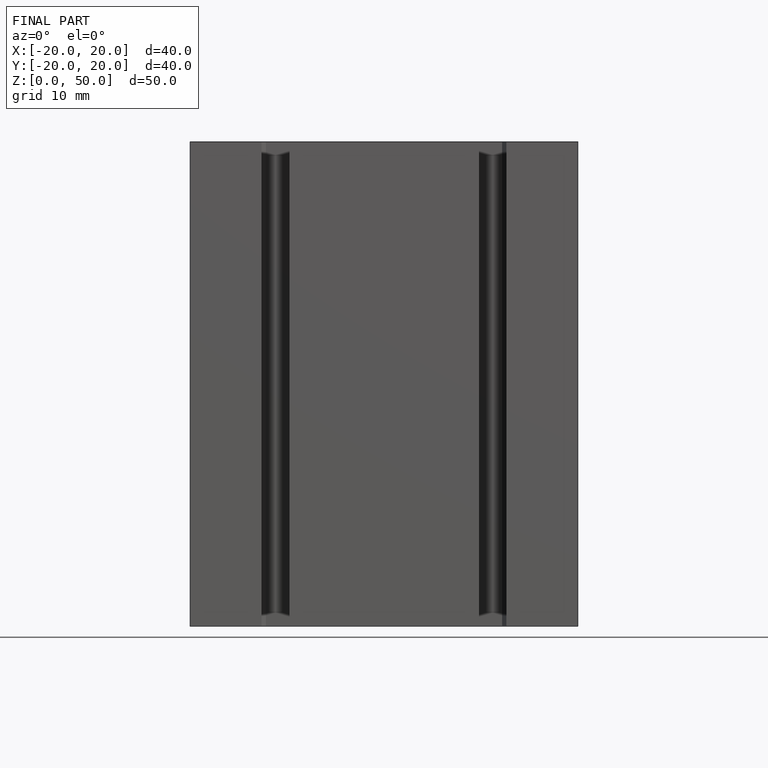
[diagram: finished part — front view with bounding-box wireframe]
